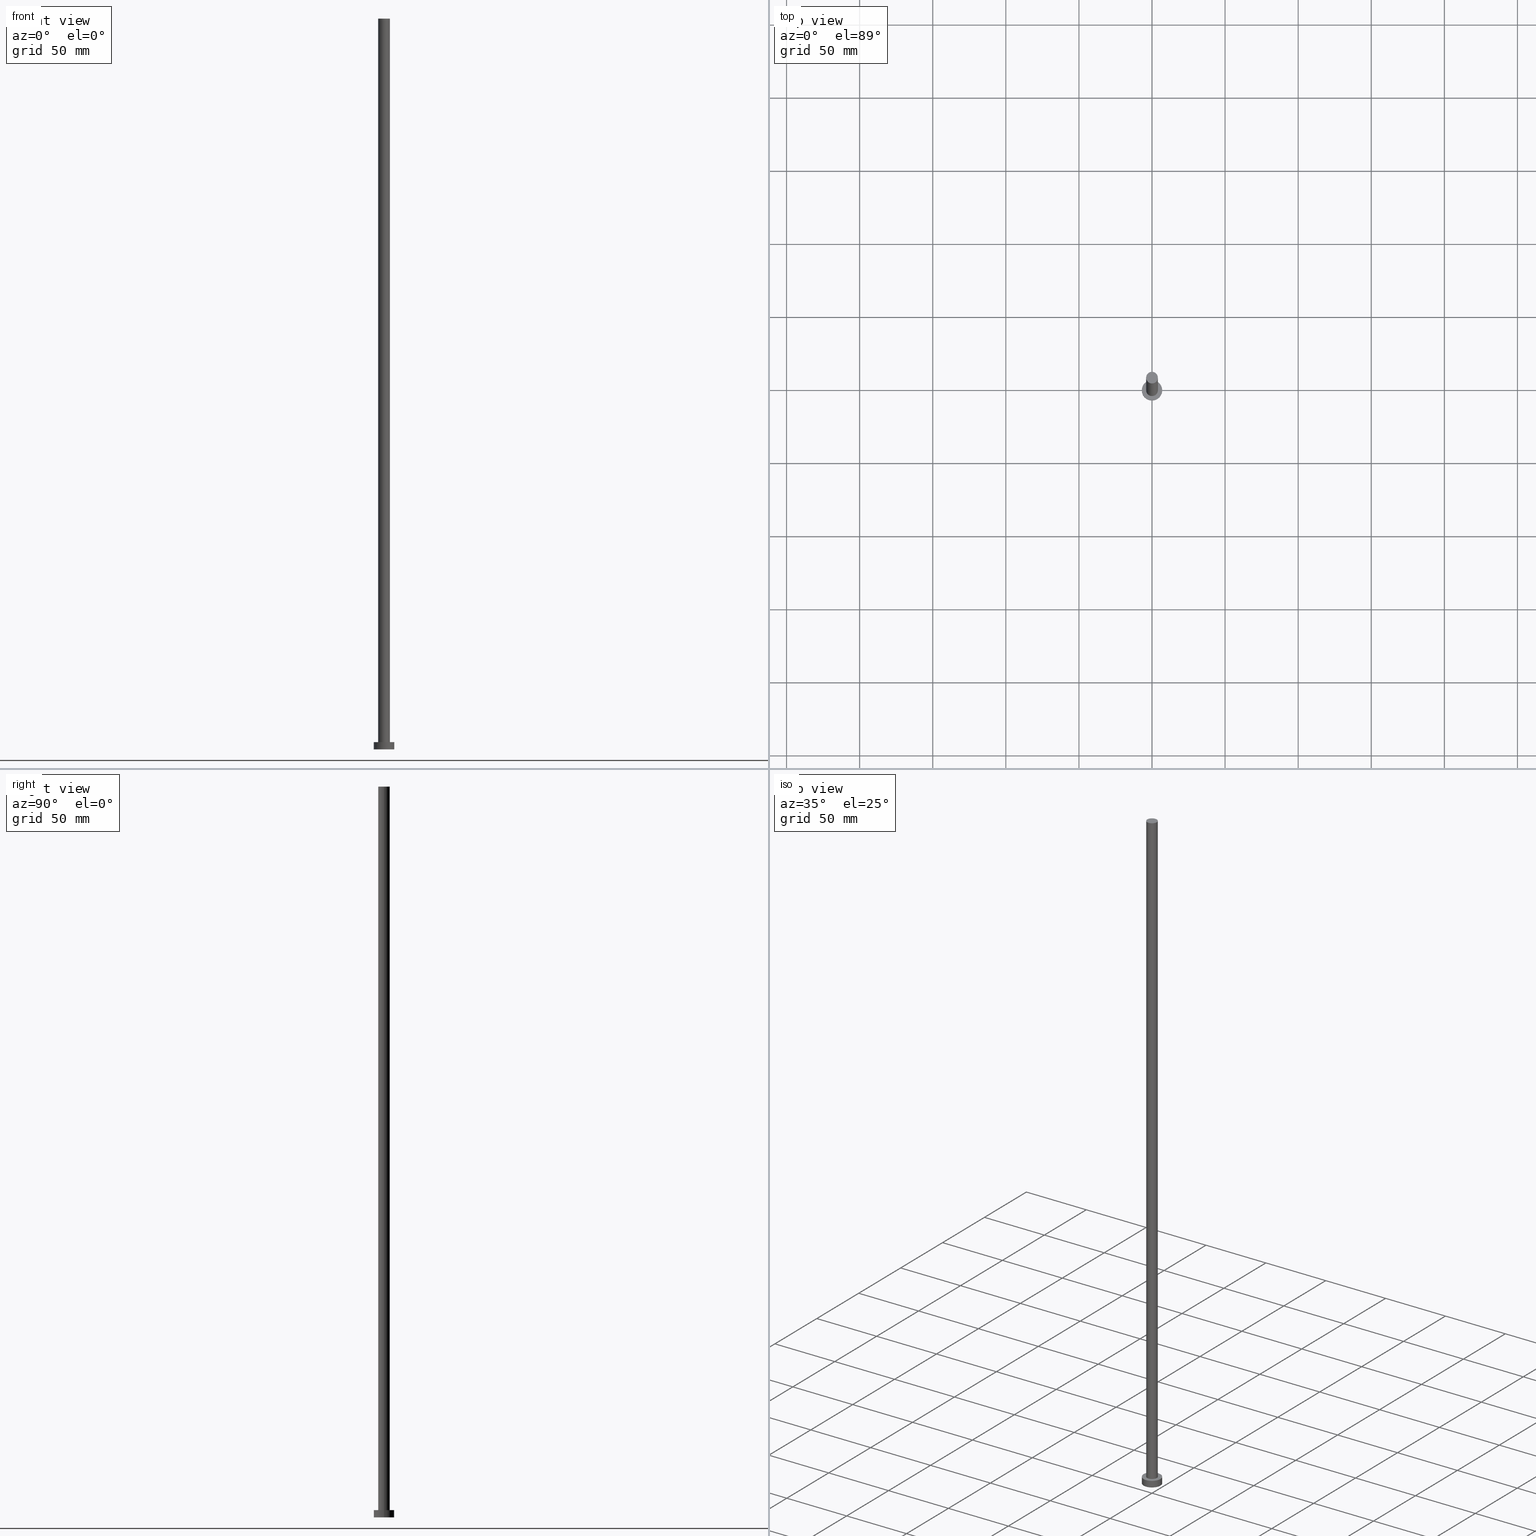
[diagram: canonical four-view strip — front | top / right | iso, engineering-drawing reading convention]
A machine part, canonical four-view strip (front | top / right | iso — engineering-drawing reading convention). The complete STEP part file that produces these views, byte-faithful:
ISO-10303-21;
HEADER;
FILE_DESCRIPTION (( 'STEP AP203' ),
    '1' );
FILE_NAME ('cd98.STEP',
    '2023-02-13T14:22:11',
    ( '' ),
    ( '' ),
    'SwSTEP 2.0',
    'SolidWorks 2019',
    '' );
FILE_SCHEMA (( 'CONFIG_CONTROL_DESIGN' ));
ENDSEC;

DATA;
#1 = ORIENTED_EDGE ( 'NONE', *, *, #56, .T. ) ;
#2 = DATE_TIME_ROLE ( 'creation_date' ) ;
#3 = APPROVAL_STATUS ( 'not_yet_approved' ) ;
#4 = ORIENTED_EDGE ( 'NONE', *, *, #146, .F. ) ;
#5 = PERSON_AND_ORGANIZATION_ROLE ( 'creator' ) ;
#6 = DIRECTION ( 'NONE',  ( 0.000000000000000000, 0.000000000000000000, 1.000000000000000000 ) ) ;
#7 = AXIS2_PLACEMENT_3D ( 'NONE', #179, #252, #11 ) ;
#8 = ORIENTED_EDGE ( 'NONE', *, *, #231, .T. ) ;
#9 = AXIS2_PLACEMENT_3D ( 'NONE', #141, #248, #253 ) ;
#10 = CARTESIAN_POINT ( 'NONE',  ( -7.000000000000000000, 0.000000000000000000, 5.000000000000000000 ) ) ;
#11 = DIRECTION ( 'NONE',  ( 1.000000000000000000, 0.000000000000000000, 0.000000000000000000 ) ) ;
#12 = AXIS2_PLACEMENT_3D ( 'NONE', #126, #123, #212 ) ;
#13 = PRODUCT ( 'cd98', 'cd98', '', ( #140 ) ) ;
#14 = CIRCLE ( 'NONE', #136, 7.000000000000000000 ) ;
#15 = ADVANCED_FACE ( 'NONE', ( #124 ), #73, .T. ) ;
#16 = ORIENTED_EDGE ( 'NONE', *, *, #61, .T. ) ;
#17 = PERSON_AND_ORGANIZATION_ROLE ( 'creator' ) ;
#18 = CARTESIAN_POINT ( 'NONE',  ( 7.000000000000000000, 8.572527594031473190E-16, 0.000000000000000000 ) ) ;
#19 = DIRECTION ( 'NONE',  ( -0.000000000000000000, -0.000000000000000000, -1.000000000000000000 ) ) ;
#20 = COORDINATED_UNIVERSAL_TIME_OFFSET ( 1, 0, .AHEAD. ) ;
#21 = CARTESIAN_POINT ( 'NONE',  ( -7.000000000000000000, 0.000000000000000000, 5.000000000000000000 ) ) ;
#22 = CARTESIAN_POINT ( 'NONE',  ( 0.000000000000000000, 0.000000000000000000, 500.0000000000000000 ) ) ;
#23 = CARTESIAN_POINT ( 'NONE',  ( 0.000000000000000000, 0.000000000000000000, 500.0000000000000000 ) ) ;
#24 = CALENDAR_DATE ( 2023, 13, 2 ) ;
#25 = AXIS2_PLACEMENT_3D ( 'NONE', #149, #85, #240 ) ;
#26 = AXIS2_PLACEMENT_3D ( 'NONE', #52, #29, #177 ) ;
#27 = UNCERTAINTY_MEASURE_WITH_UNIT (LENGTH_MEASURE( 1.000000000000000082E-05 ), #105, 'distance_accuracy_value', 'NONE');
#28 = ADVANCED_FACE ( 'NONE', ( #246, #90 ), #102, .T. ) ;
#29 = DIRECTION ( 'NONE',  ( 0.000000000000000000, 0.000000000000000000, 1.000000000000000000 ) ) ;
#30 = PRODUCT_RELATED_PRODUCT_CATEGORY ( 'detail', '', ( #13 ) ) ;
#31 = CYLINDRICAL_SURFACE ( 'NONE', #9, 7.000000000000000000 ) ;
#32 = CIRCLE ( 'NONE', #25, 7.000000000000000000 ) ;
#33 = LOCAL_TIME ( 15, 22, 11.00000000000000000, #40 ) ;
#34 = ORIENTED_EDGE ( 'NONE', *, *, #39, .F. ) ;
#35 = APPROVAL_ROLE ( '' ) ;
#36 = DIRECTION ( 'NONE',  ( 1.000000000000000000, 0.000000000000000000, 0.000000000000000000 ) ) ;
#37 = APPROVAL_DATE_TIME ( #116, #132 ) ;
#38 = DIRECTION ( 'NONE',  ( 0.000000000000000000, 0.000000000000000000, 1.000000000000000000 ) ) ;
#39 = EDGE_CURVE ( 'NONE', #234, #106, #233, .T. ) ;
#40 = COORDINATED_UNIVERSAL_TIME_OFFSET ( 1, 0, .AHEAD. ) ;
#41 = ORIENTED_EDGE ( 'NONE', *, *, #175, .F. ) ;
#42 = EDGE_CURVE ( 'NONE', #80, #209, #14, .T. ) ;
#43 = CARTESIAN_POINT ( 'NONE',  ( 0.000000000000000000, 0.000000000000000000, 500.0000000000000000 ) ) ;
#44 = DIRECTION ( 'NONE',  ( -1.000000000000000000, 0.000000000000000000, 0.000000000000000000 ) ) ;
#45 = ORIENTED_EDGE ( 'NONE', *, *, #95, .T. ) ;
#46 = DIRECTION ( 'NONE',  ( 1.000000000000000000, 0.000000000000000000, -0.000000000000000000 ) ) ;
#47 = MANIFOLD_SOLID_BREP ( 'P�idat vysunut�m3', #100 ) ;
#48 = EDGE_LOOP ( 'NONE', ( #235, #4, #184, #193 ) ) ;
#49 = PERSON_AND_ORGANIZATION ( #60, #131 ) ;
#50 = ADVANCED_FACE ( 'NONE', ( #243 ), #109, .T. ) ;
#51 = CARTESIAN_POINT ( 'NONE',  ( 4.000000000000000000, 4.898587196589412829E-16, 500.0000000000000000 ) ) ;
#52 = CARTESIAN_POINT ( 'NONE',  ( 0.000000000000000000, 0.000000000000000000, 5.000000000000000000 ) ) ;
#53 = COORDINATED_UNIVERSAL_TIME_OFFSET ( 1, 0, .AHEAD. ) ;
#54 = PERSON_AND_ORGANIZATION ( #60, #131 ) ;
#55 = FACE_OUTER_BOUND ( 'NONE', #230, .T. ) ;
#56 = EDGE_CURVE ( 'NONE', #152, #209, #133, .T. ) ;
#57 = SHAPE_DEFINITION_REPRESENTATION ( #88, #171 ) ;
#58 = ORIENTED_EDGE ( 'NONE', *, *, #39, .T. ) ;
#59 = CC_DESIGN_PERSON_AND_ORGANIZATION_ASSIGNMENT ( #54, #5, ( #218 ) ) ;
#60 = PERSON ( 'NEUR�EN�', 'NEUR�EN�', 'NEUR�EN�', ('NEUR�EN�'), ('NEUR�EN�'), ('NEUR�EN�') ) ;
#61 = EDGE_CURVE ( 'NONE', #106, #65, #255, .T. ) ;
#62 = VECTOR ( 'NONE', #168, 1000.000000000000000 ) ;
#63 = LOCAL_TIME ( 15, 22, 11.00000000000000000, #53 ) ;
#64 = VECTOR ( 'NONE', #78, 1000.000000000000000 ) ;
#65 = VERTEX_POINT ( 'NONE', #201 ) ;
#66 = DATE_AND_TIME ( #24, #225 ) ;
#67 = APPROVAL_ROLE ( '' ) ;
#68 = ADVANCED_FACE ( 'NONE', ( #228 ), #31, .T. ) ;
#69 = CARTESIAN_POINT ( 'NONE',  ( -4.000000000000000000, 0.000000000000000000, 500.0000000000000000 ) ) ;
#70 =( GEOMETRIC_REPRESENTATION_CONTEXT ( 3 ) GLOBAL_UNCERTAINTY_ASSIGNED_CONTEXT ( ( #27 ) ) GLOBAL_UNIT_ASSIGNED_CONTEXT ( ( #105, #190, #150 ) ) REPRESENTATION_CONTEXT ( 'NONE', 'WORKASPACE' ) );
#71 = ORIENTED_EDGE ( 'NONE', *, *, #42, .F. ) ;
#72 = DATE_AND_TIME ( #117, #147 ) ;
#73 = PLANE ( 'NONE',  #76 ) ;
#74 = AXIS2_PLACEMENT_3D ( 'NONE', #130, #6, #173 ) ;
#75 = APPROVAL_PERSON_ORGANIZATION ( #254, #183, #35 ) ;
#76 = AXIS2_PLACEMENT_3D ( 'NONE', #43, #166, #213 ) ;
#77 = PERSON_AND_ORGANIZATION_ROLE ( 'design_supplier' ) ;
#78 = DIRECTION ( 'NONE',  ( -0.000000000000000000, -0.000000000000000000, -1.000000000000000000 ) ) ;
#79 = DIRECTION ( 'NONE',  ( -0.000000000000000000, -0.000000000000000000, -1.000000000000000000 ) ) ;
#80 = VERTEX_POINT ( 'NONE', #160 ) ;
#81 = CC_DESIGN_PERSON_AND_ORGANIZATION_ASSIGNMENT ( #164, #211, ( #13 ) ) ;
#82 = CIRCLE ( 'NONE', #26, 4.000000000000000000 ) ;
#83 = APPROVAL_DATE_TIME ( #66, #183 ) ;
#84 = ORIENTED_EDGE ( 'NONE', *, *, #217, .F. ) ;
#85 = DIRECTION ( 'NONE',  ( 0.000000000000000000, 0.000000000000000000, 1.000000000000000000 ) ) ;
#86 = CARTESIAN_POINT ( 'NONE',  ( 0.000000000000000000, 0.000000000000000000, 0.000000000000000000 ) ) ;
#87 = CIRCLE ( 'NONE', #244, 7.000000000000000000 ) ;
#88 = PRODUCT_DEFINITION_SHAPE ( 'NONE', 'NONE',  #218 ) ;
#89 = ADVANCED_FACE ( 'NONE', ( #93 ), #207, .T. ) ;
#90 = FACE_OUTER_BOUND ( 'NONE', #142, .T. ) ;
#91 = ORIENTED_EDGE ( 'NONE', *, *, #129, .T. ) ;
#92 = CARTESIAN_POINT ( 'NONE',  ( 4.000000000000000000, 4.898587196589412829E-16, 5.000000000000000000 ) ) ;
#93 = FACE_OUTER_BOUND ( 'NONE', #120, .T. ) ;
#94 = ORIENTED_EDGE ( 'NONE', *, *, #170, .F. ) ;
#95 = EDGE_CURVE ( 'NONE', #152, #137, #159, .T. ) ;
#96 = APPROVAL ( #191, 'NEUR�EN�' ) ;
#97 = PERSON_AND_ORGANIZATION_ROLE ( 'classification_officer' ) ;
#98 = CARTESIAN_POINT ( 'NONE',  ( -4.000000000000000000, 0.000000000000000000, 500.0000000000000000 ) ) ;
#99 = ORIENTED_EDGE ( 'NONE', *, *, #129, .F. ) ;
#100 = CLOSED_SHELL ( 'NONE', ( #249, #89, #68, #28, #196, #50, #15 ) ) ;
#101 = COORDINATED_UNIVERSAL_TIME_OFFSET ( 1, 0, .AHEAD. ) ;
#102 = PLANE ( 'NONE',  #226 ) ;
#103 = DIRECTION ( 'NONE',  ( 1.000000000000000000, 0.000000000000000000, 0.000000000000000000 ) ) ;
#104 = AXIS2_PLACEMENT_3D ( 'NONE', #208, #38, #103 ) ;
#105 =( LENGTH_UNIT ( ) NAMED_UNIT ( * ) SI_UNIT ( .MILLI., .METRE. ) );
#106 = VERTEX_POINT ( 'NONE', #69 ) ;
#107 = DATE_AND_TIME ( #167, #33 ) ;
#108 = DIRECTION ( 'NONE',  ( 0.000000000000000000, 0.000000000000000000, 1.000000000000000000 ) ) ;
#109 = CYLINDRICAL_SURFACE ( 'NONE', #148, 4.000000000000000000 ) ;
#110 = CC_DESIGN_DATE_AND_TIME_ASSIGNMENT ( #199, #178, ( #224 ) ) ;
#111 = PERSON_AND_ORGANIZATION ( #60, #131 ) ;
#112 = DIRECTION ( 'NONE',  ( -0.000000000000000000, -0.000000000000000000, -1.000000000000000000 ) ) ;
#113 = EDGE_CURVE ( 'NONE', #202, #65, #82, .T. ) ;
#114 = DIRECTION ( 'NONE',  ( -0.000000000000000000, -0.000000000000000000, -1.000000000000000000 ) ) ;
#115 = CARTESIAN_POINT ( 'NONE',  ( 0.000000000000000000, 0.000000000000000000, 5.000000000000000000 ) ) ;
#116 = DATE_AND_TIME ( #143, #250 ) ;
#117 = CALENDAR_DATE ( 2023, 13, 2 ) ;
#118 = APPROVAL_ROLE ( '' ) ;
#119 = CC_DESIGN_PERSON_AND_ORGANIZATION_ASSIGNMENT ( #111, #17, ( #189 ) ) ;
#120 = EDGE_LOOP ( 'NONE', ( #144, #1, #8, #41 ) ) ;
#121 = ORIENTED_EDGE ( 'NONE', *, *, #61, .F. ) ;
#122 = DIRECTION ( 'NONE',  ( 1.000000000000000000, 0.000000000000000000, 0.000000000000000000 ) ) ;
#123 = DIRECTION ( 'NONE',  ( 0.000000000000000000, 0.000000000000000000, 1.000000000000000000 ) ) ;
#124 = FACE_OUTER_BOUND ( 'NONE', #239, .T. ) ;
#125 = CC_DESIGN_APPROVAL ( #132, ( #224 ) ) ;
#126 = CARTESIAN_POINT ( 'NONE',  ( 0.000000000000000000, 0.000000000000000000, 0.000000000000000000 ) ) ;
#127 = ORIENTED_EDGE ( 'NONE', *, *, #217, .T. ) ;
#128 = ORIENTED_EDGE ( 'NONE', *, *, #113, .T. ) ;
#129 = EDGE_CURVE ( 'NONE', #65, #202, #187, .T. ) ;
#130 = CARTESIAN_POINT ( 'NONE',  ( 0.000000000000000000, 0.000000000000000000, 5.000000000000000000 ) ) ;
#131 = ORGANIZATION ( 'NEUR�EN�', 'NEUR�EN�', '' ) ;
#132 = APPROVAL ( #3, 'NEUR�EN�' ) ;
#133 = LINE ( 'NONE', #165, #176 ) ;
#134 = ORIENTED_EDGE ( 'NONE', *, *, #113, .F. ) ;
#135 = CC_DESIGN_PERSON_AND_ORGANIZATION_ASSIGNMENT ( #162, #77, ( #189 ) ) ;
#136 = AXIS2_PLACEMENT_3D ( 'NONE', #86, #151, #169 ) ;
#137 = VERTEX_POINT ( 'NONE', #10 ) ;
#138 = PERSON_AND_ORGANIZATION ( #60, #131 ) ;
#139 = CYLINDRICAL_SURFACE ( 'NONE', #232, 4.000000000000000000 ) ;
#140 = MECHANICAL_CONTEXT ( 'NONE', #180, 'mechanical' ) ;
#141 = CARTESIAN_POINT ( 'NONE',  ( 0.000000000000000000, 0.000000000000000000, 5.000000000000000000 ) ) ;
#142 = EDGE_LOOP ( 'NONE', ( #188, #45 ) ) ;
#143 = CALENDAR_DATE ( 2023, 13, 2 ) ;
#144 = ORIENTED_EDGE ( 'NONE', *, *, #95, .F. ) ;
#145 = ORIENTED_EDGE ( 'NONE', *, *, #231, .F. ) ;
#146 = EDGE_CURVE ( 'NONE', #137, #152, #32, .T. ) ;
#147 = LOCAL_TIME ( 15, 22, 11.00000000000000000, #20 ) ;
#148 = AXIS2_PLACEMENT_3D ( 'NONE', #174, #158, #245 ) ;
#149 = CARTESIAN_POINT ( 'NONE',  ( 0.000000000000000000, 0.000000000000000000, 5.000000000000000000 ) ) ;
#150 =( NAMED_UNIT ( * ) SI_UNIT ( $, .STERADIAN. ) SOLID_ANGLE_UNIT ( ) );
#151 = DIRECTION ( 'NONE',  ( 0.000000000000000000, 0.000000000000000000, 1.000000000000000000 ) ) ;
#152 = VERTEX_POINT ( 'NONE', #192 ) ;
#153 = APPLICATION_PROTOCOL_DEFINITION ( 'international standard', 'config_control_design', 1994, #180 ) ;
#154 = CC_DESIGN_APPROVAL ( #183, ( #189 ) ) ;
#155 = AXIS2_PLACEMENT_3D ( 'NONE', #204, #182, #36 ) ;
#156 = ORIENTED_EDGE ( 'NONE', *, *, #170, .T. ) ;
#157 = CARTESIAN_POINT ( 'NONE',  ( 0.000000000000000000, 0.000000000000000000, 0.000000000000000000 ) ) ;
#158 = DIRECTION ( 'NONE',  ( -0.000000000000000000, -0.000000000000000000, -1.000000000000000000 ) ) ;
#159 = CIRCLE ( 'NONE', #155, 7.000000000000000000 ) ;
#160 = CARTESIAN_POINT ( 'NONE',  ( -7.000000000000000000, 0.000000000000000000, 0.000000000000000000 ) ) ;
#161 = LINE ( 'NONE', #51, #205 ) ;
#162 = PERSON_AND_ORGANIZATION ( #60, #131 ) ;
#163 = DIRECTION ( 'NONE',  ( 0.000000000000000000, 0.000000000000000000, 1.000000000000000000 ) ) ;
#164 = PERSON_AND_ORGANIZATION ( #60, #131 ) ;
#165 = CARTESIAN_POINT ( 'NONE',  ( 7.000000000000000000, 8.572527594031473190E-16, 5.000000000000000000 ) ) ;
#166 = DIRECTION ( 'NONE',  ( 0.000000000000000000, 0.000000000000000000, 1.000000000000000000 ) ) ;
#167 = CALENDAR_DATE ( 2023, 13, 2 ) ;
#168 = DIRECTION ( 'NONE',  ( -0.000000000000000000, -0.000000000000000000, -1.000000000000000000 ) ) ;
#169 = DIRECTION ( 'NONE',  ( 1.000000000000000000, 0.000000000000000000, 0.000000000000000000 ) ) ;
#170 = EDGE_CURVE ( 'NONE', #106, #234, #222, .T. ) ;
#171 = ADVANCED_BREP_SHAPE_REPRESENTATION ( 'cd98', ( #47, #7 ), #70 ) ;
#172 = EDGE_LOOP ( 'NONE', ( #84, #94, #16, #91 ) ) ;
#173 = DIRECTION ( 'NONE',  ( 1.000000000000000000, 0.000000000000000000, 0.000000000000000000 ) ) ;
#174 = CARTESIAN_POINT ( 'NONE',  ( 0.000000000000000000, 0.000000000000000000, 500.0000000000000000 ) ) ;
#175 = EDGE_CURVE ( 'NONE', #137, #80, #186, .T. ) ;
#176 = VECTOR ( 'NONE', #112, 1000.000000000000000 ) ;
#177 = DIRECTION ( 'NONE',  ( 1.000000000000000000, 0.000000000000000000, 0.000000000000000000 ) ) ;
#178 = DATE_TIME_ROLE ( 'classification_date' ) ;
#179 = CARTESIAN_POINT ( 'NONE',  ( 0.000000000000000000, 0.000000000000000000, 0.000000000000000000 ) ) ;
#180 = APPLICATION_CONTEXT ( 'configuration controlled 3d designs of mechanical parts and assemblies' ) ;
#181 = AXIS2_PLACEMENT_3D ( 'NONE', #251, #114, #223 ) ;
#182 = DIRECTION ( 'NONE',  ( 0.000000000000000000, 0.000000000000000000, 1.000000000000000000 ) ) ;
#183 = APPROVAL ( #236, 'NEUR�EN�' ) ;
#184 = ORIENTED_EDGE ( 'NONE', *, *, #175, .T. ) ;
#185 = APPROVAL_DATE_TIME ( #107, #96 ) ;
#186 = LINE ( 'NONE', #21, #62 ) ;
#187 = CIRCLE ( 'NONE', #74, 4.000000000000000000 ) ;
#188 = ORIENTED_EDGE ( 'NONE', *, *, #146, .T. ) ;
#189 = PRODUCT_DEFINITION_FORMATION_WITH_SPECIFIED_SOURCE ( 'LIBOVOLN�', '', #13, .NOT_KNOWN. ) ;
#190 =( NAMED_UNIT ( * ) PLANE_ANGLE_UNIT ( ) SI_UNIT ( $, .RADIAN. ) );
#191 = APPROVAL_STATUS ( 'not_yet_approved' ) ;
#192 = CARTESIAN_POINT ( 'NONE',  ( 7.000000000000000000, 8.572527594031473190E-16, 5.000000000000000000 ) ) ;
#193 = ORIENTED_EDGE ( 'NONE', *, *, #42, .T. ) ;
#194 = APPLICATION_PROTOCOL_DEFINITION ( 'international standard', 'config_control_design', 1994, #216 ) ;
#195 = AXIS2_PLACEMENT_3D ( 'NONE', #23, #242, #219 ) ;
#196 = ADVANCED_FACE ( 'NONE', ( #55 ), #237, .F. ) ;
#197 = CC_DESIGN_PERSON_AND_ORGANIZATION_ASSIGNMENT ( #49, #97, ( #224 ) ) ;
#198 = APPROVAL_PERSON_ORGANIZATION ( #215, #96, #118 ) ;
#199 = DATE_AND_TIME ( #247, #63 ) ;
#200 = SECURITY_CLASSIFICATION_LEVEL ( 'unclassified' ) ;
#201 = CARTESIAN_POINT ( 'NONE',  ( -4.000000000000000000, 0.000000000000000000, 5.000000000000000000 ) ) ;
#202 = VERTEX_POINT ( 'NONE', #92 ) ;
#203 = CC_DESIGN_DATE_AND_TIME_ASSIGNMENT ( #72, #2, ( #218 ) ) ;
#204 = CARTESIAN_POINT ( 'NONE',  ( 0.000000000000000000, 0.000000000000000000, 5.000000000000000000 ) ) ;
#205 = VECTOR ( 'NONE', #79, 1000.000000000000000 ) ;
#206 = CC_DESIGN_APPROVAL ( #96, ( #218 ) ) ;
#207 = CYLINDRICAL_SURFACE ( 'NONE', #181, 7.000000000000000000 ) ;
#208 = CARTESIAN_POINT ( 'NONE',  ( 0.000000000000000000, 0.000000000000000000, 500.0000000000000000 ) ) ;
#209 = VERTEX_POINT ( 'NONE', #18 ) ;
#210 = FACE_OUTER_BOUND ( 'NONE', #227, .T. ) ;
#211 = PERSON_AND_ORGANIZATION_ROLE ( 'design_owner' ) ;
#212 = DIRECTION ( 'NONE',  ( 1.000000000000000000, 0.000000000000000000, -0.000000000000000000 ) ) ;
#213 = DIRECTION ( 'NONE',  ( 1.000000000000000000, 0.000000000000000000, -0.000000000000000000 ) ) ;
#214 = APPROVAL_PERSON_ORGANIZATION ( #138, #132, #67 ) ;
#215 = PERSON_AND_ORGANIZATION ( #60, #131 ) ;
#216 = APPLICATION_CONTEXT ( 'configuration controlled 3d designs of mechanical parts and assemblies' ) ;
#217 = EDGE_CURVE ( 'NONE', #234, #202, #161, .T. ) ;
#218 = PRODUCT_DEFINITION ( 'NEZN�M�', '', #189, #221 ) ;
#219 = DIRECTION ( 'NONE',  ( 1.000000000000000000, 0.000000000000000000, 0.000000000000000000 ) ) ;
#220 = EDGE_LOOP ( 'NONE', ( #99, #134 ) ) ;
#221 = DESIGN_CONTEXT ( 'detailed design', #216, 'design' ) ;
#222 = CIRCLE ( 'NONE', #104, 4.000000000000000000 ) ;
#223 = DIRECTION ( 'NONE',  ( -1.000000000000000000, 0.000000000000000000, 0.000000000000000000 ) ) ;
#224 = SECURITY_CLASSIFICATION ( '', '', #200 ) ;
#225 = LOCAL_TIME ( 15, 22, 11.00000000000000000, #101 ) ;
#226 = AXIS2_PLACEMENT_3D ( 'NONE', #115, #163, #46 ) ;
#227 = EDGE_LOOP ( 'NONE', ( #34, #127, #128, #121 ) ) ;
#228 = FACE_OUTER_BOUND ( 'NONE', #48, .T. ) ;
#229 = COORDINATED_UNIVERSAL_TIME_OFFSET ( 1, 0, .AHEAD. ) ;
#230 = EDGE_LOOP ( 'NONE', ( #71, #145 ) ) ;
#231 = EDGE_CURVE ( 'NONE', #209, #80, #87, .T. ) ;
#232 = AXIS2_PLACEMENT_3D ( 'NONE', #22, #19, #44 ) ;
#233 = CIRCLE ( 'NONE', #195, 4.000000000000000000 ) ;
#234 = VERTEX_POINT ( 'NONE', #241 ) ;
#235 = ORIENTED_EDGE ( 'NONE', *, *, #56, .F. ) ;
#236 = APPROVAL_STATUS ( 'not_yet_approved' ) ;
#237 = PLANE ( 'NONE',  #12 ) ;
#238 = CC_DESIGN_SECURITY_CLASSIFICATION ( #224, ( #189 ) ) ;
#239 = EDGE_LOOP ( 'NONE', ( #156, #58 ) ) ;
#240 = DIRECTION ( 'NONE',  ( 1.000000000000000000, 0.000000000000000000, 0.000000000000000000 ) ) ;
#241 = CARTESIAN_POINT ( 'NONE',  ( 4.000000000000000000, 4.898587196589412829E-16, 500.0000000000000000 ) ) ;
#242 = DIRECTION ( 'NONE',  ( 0.000000000000000000, 0.000000000000000000, 1.000000000000000000 ) ) ;
#243 = FACE_OUTER_BOUND ( 'NONE', #172, .T. ) ;
#244 = AXIS2_PLACEMENT_3D ( 'NONE', #157, #108, #122 ) ;
#245 = DIRECTION ( 'NONE',  ( -1.000000000000000000, 0.000000000000000000, 0.000000000000000000 ) ) ;
#246 = FACE_BOUND ( 'NONE', #220, .T. ) ;
#247 = CALENDAR_DATE ( 2023, 13, 2 ) ;
#248 = DIRECTION ( 'NONE',  ( -0.000000000000000000, -0.000000000000000000, -1.000000000000000000 ) ) ;
#249 = ADVANCED_FACE ( 'NONE', ( #210 ), #139, .T. ) ;
#250 = LOCAL_TIME ( 15, 22, 11.00000000000000000, #229 ) ;
#251 = CARTESIAN_POINT ( 'NONE',  ( 0.000000000000000000, 0.000000000000000000, 5.000000000000000000 ) ) ;
#252 = DIRECTION ( 'NONE',  ( 0.000000000000000000, 0.000000000000000000, 1.000000000000000000 ) ) ;
#253 = DIRECTION ( 'NONE',  ( -1.000000000000000000, 0.000000000000000000, 0.000000000000000000 ) ) ;
#254 = PERSON_AND_ORGANIZATION ( #60, #131 ) ;
#255 = LINE ( 'NONE', #98, #64 ) ;
ENDSEC;
END-ISO-10303-21;
